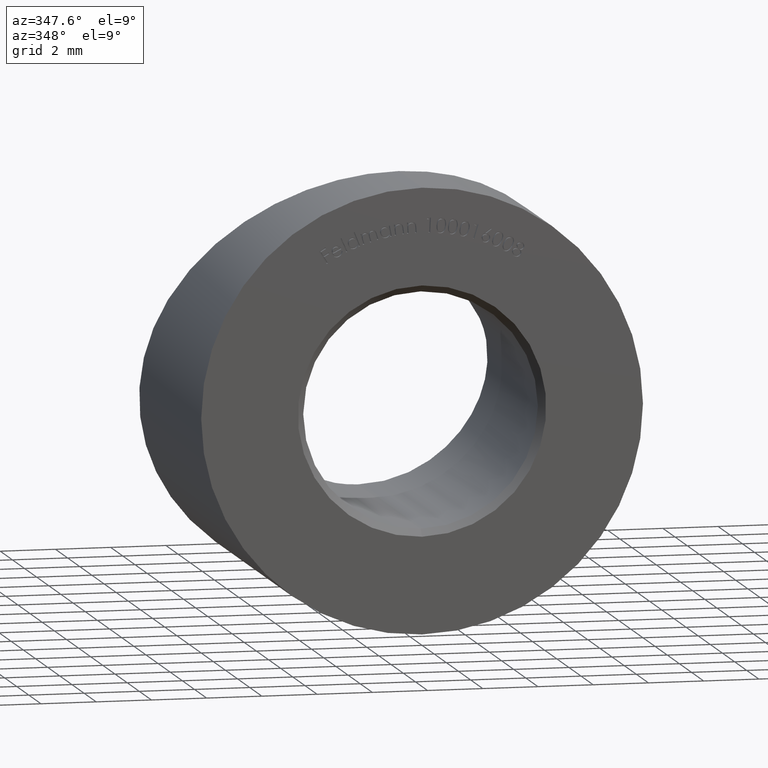
[diagram: clean part render]
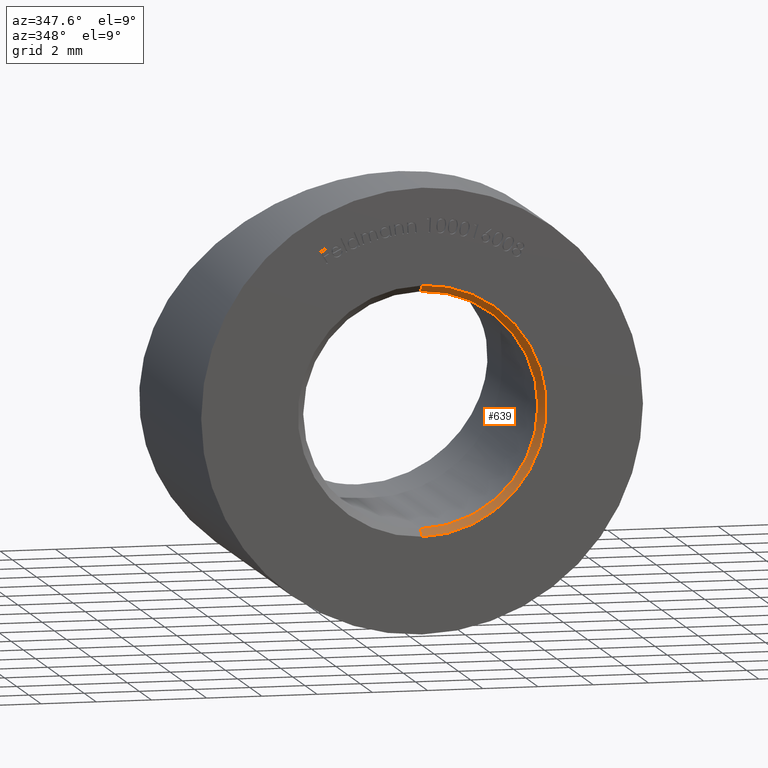
[diagram: same view with one face highlighted and labeled with its STEP entity id]
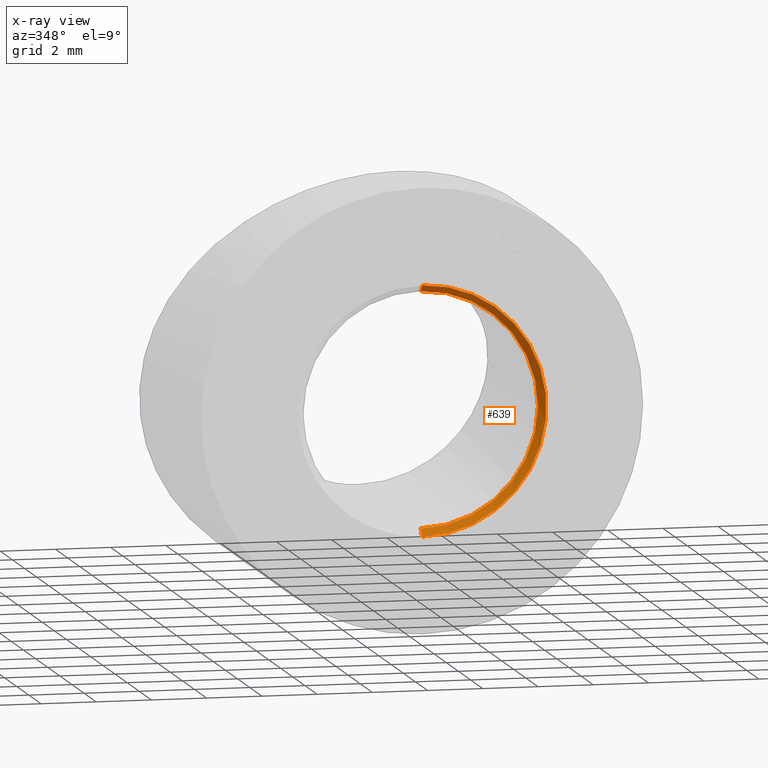
[diagram: x-ray of the same camera — body ghosted, the highlighted face saturated]
A machine part, auxiliary view. The second image highlights one B-rep face of the part: STEP entity #639.
The next image is the same camera in x-ray: the body ghosted, the highlighted face saturated — about 0% of this face is hidden behind the body in this view.
In plain terms, the highlighted conical surface has half-angle 45 deg.
Its self-contained STEP definition (entity closure, byte-faithful):
#186 = ORIENTED_EDGE ( 'NONE', *, *, #10191, .T. ) ;
#235 = VERTEX_POINT ( 'NONE', #2610 ) ;
#639 = ADVANCED_FACE ( 'NONE', ( #13158 ), #9896, .F. ) ;
#1308 = VERTEX_POINT ( 'NONE', #8598 ) ;
#1500 = EDGE_LOOP ( 'NONE', ( #7141, #7561, #186, #4996 ) ) ;
#1852 = CARTESIAN_POINT ( 'NONE',  ( 5.510910596163114200E-016, 0.0000000000000000000, 4.500000000000020400 ) ) ;
#2093 = EDGE_CURVE ( 'NONE', #6302, #235, #11946, .T. ) ;
#2610 = CARTESIAN_POINT ( 'NONE',  ( 5.204748896376249700E-016, 0.2500000000000175400, 4.250000000000000000 ) ) ;
#2782 = VECTOR ( 'NONE', #3507, 1000.000000000000000 ) ;
#3309 = CARTESIAN_POINT ( 'NONE',  ( 0.0000000000000000000, 0.2500000000000175400, 0.0000000000000000000 ) ) ;
#3507 = DIRECTION ( 'NONE',  ( 0.0000000000000000000, -0.7071067811865439100, -0.7071067811865512400 ) ) ;
#3959 = EDGE_CURVE ( 'NONE', #9622, #1308, #7820, .T. ) ;
#4208 = EDGE_CURVE ( 'NONE', #235, #9622, #10446, .T. ) ;
#4721 = VECTOR ( 'NONE', #12914, 1000.000000000000000 ) ;
#4996 = ORIENTED_EDGE ( 'NONE', *, *, #3959, .F. ) ;
#5008 = DIRECTION ( 'NONE',  ( 0.0000000000000000000, -1.000000000000000000, 0.0000000000000000000 ) ) ;
#6302 = VERTEX_POINT ( 'NONE', #10555 ) ;
#7096 = DIRECTION ( 'NONE',  ( 0.0000000000000000000, 0.0000000000000000000, -1.000000000000000000 ) ) ;
#7141 = ORIENTED_EDGE ( 'NONE', *, *, #4208, .F. ) ;
#7284 = CARTESIAN_POINT ( 'NONE',  ( 5.204748896376250700E-016, 0.2500000000000175400, 4.250000000000000000 ) ) ;
#7561 = ORIENTED_EDGE ( 'NONE', *, *, #2093, .F. ) ;
#7705 = DIRECTION ( 'NONE',  ( 0.0000000000000000000, 0.0000000000000000000, 1.000000000000000000 ) ) ;
#7820 = CIRCLE ( 'NONE', #8351, 4.500000000000020400 ) ;
#8163 = DIRECTION ( 'NONE',  ( 0.0000000000000000000, 1.000000000000000000, 0.0000000000000000000 ) ) ;
#8166 = AXIS2_PLACEMENT_3D ( 'NONE', #12732, #5008, #7096 ) ;
#8351 = AXIS2_PLACEMENT_3D ( 'NONE', #10159, #8163, #10635 ) ;
#8598 = CARTESIAN_POINT ( 'NONE',  ( 0.0000000000000000000, 0.0000000000000000000, -4.500000000000020400 ) ) ;
#9622 = VERTEX_POINT ( 'NONE', #1852 ) ;
#9896 = CONICAL_SURFACE ( 'NONE', #8166, 4.250000000000000000, 0.7853981633974533900 ) ;
#10159 = CARTESIAN_POINT ( 'NONE',  ( 0.0000000000000000000, 0.0000000000000000000, 0.0000000000000000000 ) ) ;
#10191 = EDGE_CURVE ( 'NONE', #6302, #1308, #10560, .T. ) ;
#10446 = LINE ( 'NONE', #7284, #4721 ) ;
#10555 = CARTESIAN_POINT ( 'NONE',  ( 0.0000000000000000000, 0.2500000000000175400, -4.250000000000000000 ) ) ;
#10560 = LINE ( 'NONE', #11459, #2782 ) ;
#10635 = DIRECTION ( 'NONE',  ( 0.0000000000000000000, 0.0000000000000000000, 1.000000000000000000 ) ) ;
#11459 = CARTESIAN_POINT ( 'NONE',  ( 0.0000000000000000000, 0.2500000000000175400, -4.250000000000000000 ) ) ;
#11854 = AXIS2_PLACEMENT_3D ( 'NONE', #3309, #13309, #7705 ) ;
#11946 = CIRCLE ( 'NONE', #11854, 4.250000000000000000 ) ;
#12732 = CARTESIAN_POINT ( 'NONE',  ( 0.0000000000000000000, 0.2500000000000175400, 0.0000000000000000000 ) ) ;
#12914 = DIRECTION ( 'NONE',  ( 8.659560562354978500E-017, -0.7071067811865439100, 0.7071067811865512400 ) ) ;
#13158 = FACE_OUTER_BOUND ( 'NONE', #1500, .T. ) ;
#13309 = DIRECTION ( 'NONE',  ( 0.0000000000000000000, -1.000000000000000000, 0.0000000000000000000 ) ) ;